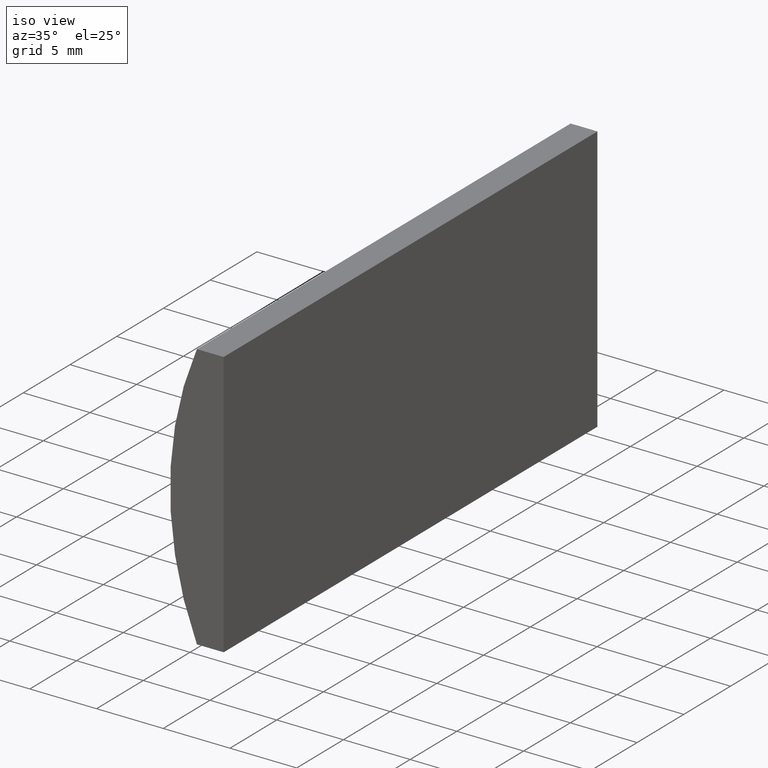
[diagram: clean part render]
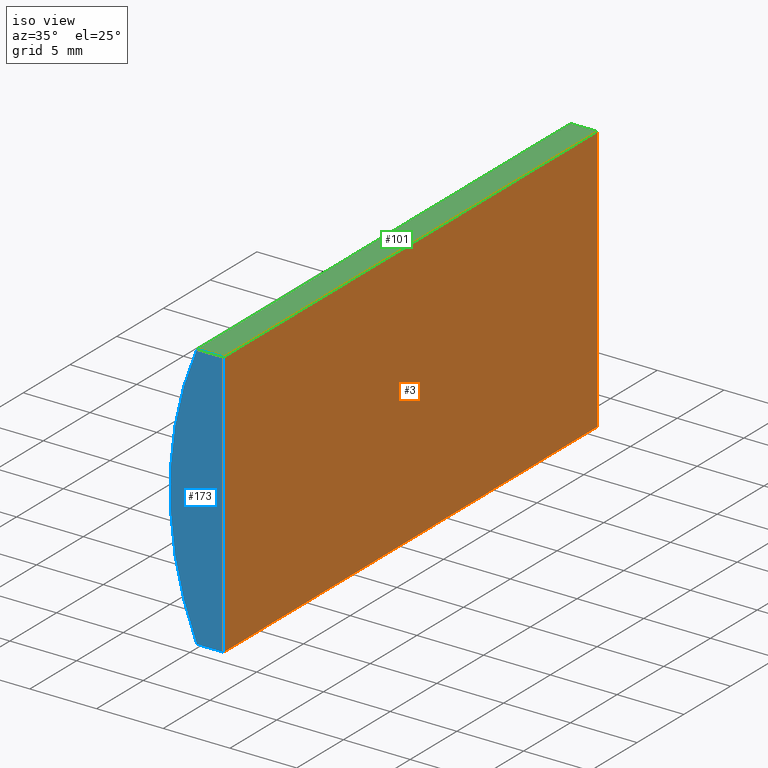
[diagram: same view with three faces highlighted in distinct colors, each labeled with its STEP entity id]
A machine part, iso view with three faces highlighted in distinct colors.
Their STEP definitions:

[orange] entity #3 — the highlighted planar face has unit normal (-1, 0, 0).
#2 = DIRECTION ( 'NONE',  ( -3.469446951953614200E-016, -0.0000000000000000000, -1.000000000000000000 ) ) ;
#3 = ADVANCED_FACE ( 'NONE', ( #80 ), #70, .F. ) ;
#4 = ORIENTED_EDGE ( 'NONE', *, *, #196, .T. ) ;
#5 = LINE ( 'NONE', #18, #135 ) ;
#11 = CARTESIAN_POINT ( 'NONE',  ( -17.47479566514874000, 40.00000000000000000, -10.00000000000000000 ) ) ;
#18 = CARTESIAN_POINT ( 'NONE',  ( -17.47479566514874000, 40.00000000000000000, -10.00000000000000000 ) ) ;
#20 = VERTEX_POINT ( 'NONE', #11 ) ;
#31 = EDGE_CURVE ( 'NONE', #85, #158, #126, .T. ) ;
#35 = EDGE_LOOP ( 'NONE', ( #50, #119, #121, #4 ) ) ;
#50 = ORIENTED_EDGE ( 'NONE', *, *, #31, .T. ) ;
#54 = CARTESIAN_POINT ( 'NONE',  ( -17.47479566514874000, 40.00000000000000000, -10.00000000000000000 ) ) ;
#64 = CARTESIAN_POINT ( 'NONE',  ( -17.47479566514874000, 0.0000000000000000000, -10.00000000000000000 ) ) ;
#67 = LINE ( 'NONE', #54, #165 ) ;
#70 = PLANE ( 'NONE',  #162 ) ;
#80 = FACE_OUTER_BOUND ( 'NONE', #35, .T. ) ;
#85 = VERTEX_POINT ( 'NONE', #143 ) ;
#97 = CARTESIAN_POINT ( 'NONE',  ( -17.47479566514874000, 40.00000000000000000, -10.00000000000000000 ) ) ;
#98 = VECTOR ( 'NONE', #114, 1000.000000000000000 ) ;
#102 = VERTEX_POINT ( 'NONE', #179 ) ;
#105 = EDGE_CURVE ( 'NONE', #102, #20, #67, .T. ) ;
#114 = DIRECTION ( 'NONE',  ( -0.0000000000000000000, -1.000000000000000000, -0.0000000000000000000 ) ) ;
#119 = ORIENTED_EDGE ( 'NONE', *, *, #188, .F. ) ;
#121 = ORIENTED_EDGE ( 'NONE', *, *, #105, .F. ) ;
#126 = LINE ( 'NONE', #200, #148 ) ;
#135 = VECTOR ( 'NONE', #202, 1000.000000000000000 ) ;
#140 = LINE ( 'NONE', #171, #98 ) ;
#143 = CARTESIAN_POINT ( 'NONE',  ( -17.47479566514873300, 0.0000000000000000000, 10.00000000000000000 ) ) ;
#148 = VECTOR ( 'NONE', #2, 1000.000000000000000 ) ;
#151 = DIRECTION ( 'NONE',  ( -1.000000000000000000, 0.0000000000000000000, 3.469446951953614200E-016 ) ) ;
#156 = DIRECTION ( 'NONE',  ( -3.469446951953614200E-016, -0.0000000000000000000, -1.000000000000000000 ) ) ;
#158 = VERTEX_POINT ( 'NONE', #64 ) ;
#162 = AXIS2_PLACEMENT_3D ( 'NONE', #97, #151, #164 ) ;
#164 = DIRECTION ( 'NONE',  ( 3.469446951953614200E-016, 0.0000000000000000000, 1.000000000000000000 ) ) ;
#165 = VECTOR ( 'NONE', #156, 1000.000000000000000 ) ;
#171 = CARTESIAN_POINT ( 'NONE',  ( -17.47479566514873300, 40.00000000000000000, 10.00000000000000000 ) ) ;
#179 = CARTESIAN_POINT ( 'NONE',  ( -17.47479566514873300, 40.00000000000000000, 10.00000000000000000 ) ) ;
#188 = EDGE_CURVE ( 'NONE', #20, #158, #5, .T. ) ;
#196 = EDGE_CURVE ( 'NONE', #102, #85, #140, .T. ) ;
#200 = CARTESIAN_POINT ( 'NONE',  ( -17.47479566514874000, 0.0000000000000000000, -10.00000000000000000 ) ) ;
#202 = DIRECTION ( 'NONE',  ( -0.0000000000000000000, -1.000000000000000000, -0.0000000000000000000 ) ) ;

[blue] entity #173 — the highlighted planar face has unit normal (0, 1, 0).
#1 = ORIENTED_EDGE ( 'NONE', *, *, #31, .F. ) ;
#2 = DIRECTION ( 'NONE',  ( -3.469446951953614200E-016, -0.0000000000000000000, -1.000000000000000000 ) ) ;
#13 = PLANE ( 'NONE',  #117 ) ;
#23 = DIRECTION ( 'NONE',  ( -1.000000000000000000, -0.0000000000000000000, -0.0000000000000000000 ) ) ;
#28 = VERTEX_POINT ( 'NONE', #111 ) ;
#31 = EDGE_CURVE ( 'NONE', #85, #158, #126, .T. ) ;
#33 = CARTESIAN_POINT ( 'NONE',  ( 4.355204334851265500, 0.0000000000000000000, 4.286263797015675000E-017 ) ) ;
#39 = DIRECTION ( 'NONE',  ( 0.0000000000000000000, -0.0000000000000000000, 1.000000000000000000 ) ) ;
#41 = VERTEX_POINT ( 'NONE', #109 ) ;
#43 = FACE_OUTER_BOUND ( 'NONE', #69, .T. ) ;
#57 = VECTOR ( 'NONE', #65, 1000.000000000000000 ) ;
#62 = CARTESIAN_POINT ( 'NONE',  ( -19.48221373003152100, 0.0000000000000000000, 10.00000000000000000 ) ) ;
#64 = CARTESIAN_POINT ( 'NONE',  ( -17.47479566514874000, 0.0000000000000000000, -10.00000000000000000 ) ) ;
#65 = DIRECTION ( 'NONE',  ( 1.000000000000000000, 0.0000000000000000000, 0.0000000000000000000 ) ) ;
#69 = EDGE_LOOP ( 'NONE', ( #86, #94, #1, #177 ) ) ;
#78 = DIRECTION ( 'NONE',  ( 0.0000000000000000000, 1.000000000000000000, 0.0000000000000000000 ) ) ;
#81 = EDGE_CURVE ( 'NONE', #158, #41, #106, .T. ) ;
#85 = VERTEX_POINT ( 'NONE', #143 ) ;
#86 = ORIENTED_EDGE ( 'NONE', *, *, #157, .F. ) ;
#93 = CARTESIAN_POINT ( 'NONE',  ( -19.48221373003152100, 0.0000000000000000000, -10.00000000000000000 ) ) ;
#94 = ORIENTED_EDGE ( 'NONE', *, *, #81, .F. ) ;
#103 = DIRECTION ( 'NONE',  ( 0.0000000000000000000, 1.000000000000000000, 0.0000000000000000000 ) ) ;
#106 = LINE ( 'NONE', #93, #138 ) ;
#107 = CARTESIAN_POINT ( 'NONE',  ( 4.355204334851265500, 0.0000000000000000000, 4.286263797015675000E-017 ) ) ;
#109 = CARTESIAN_POINT ( 'NONE',  ( -19.48221373003152100, 0.0000000000000000000, -10.00000000000000000 ) ) ;
#111 = CARTESIAN_POINT ( 'NONE',  ( -19.48221373003152100, 0.0000000000000000000, 10.00000000000000000 ) ) ;
#117 = AXIS2_PLACEMENT_3D ( 'NONE', #33, #78, #39 ) ;
#118 = LINE ( 'NONE', #62, #57 ) ;
#126 = LINE ( 'NONE', #200, #148 ) ;
#131 = DIRECTION ( 'NONE',  ( 0.0000000000000000000, 0.0000000000000000000, 1.000000000000000000 ) ) ;
#133 = CIRCLE ( 'NONE', #182, 25.85000000000000500 ) ;
#138 = VECTOR ( 'NONE', #23, 1000.000000000000000 ) ;
#143 = CARTESIAN_POINT ( 'NONE',  ( -17.47479566514873300, 0.0000000000000000000, 10.00000000000000000 ) ) ;
#148 = VECTOR ( 'NONE', #2, 1000.000000000000000 ) ;
#157 = EDGE_CURVE ( 'NONE', #41, #28, #133, .T. ) ;
#158 = VERTEX_POINT ( 'NONE', #64 ) ;
#173 = ADVANCED_FACE ( 'NONE', ( #43 ), #13, .F. ) ;
#177 = ORIENTED_EDGE ( 'NONE', *, *, #191, .F. ) ;
#182 = AXIS2_PLACEMENT_3D ( 'NONE', #107, #103, #131 ) ;
#191 = EDGE_CURVE ( 'NONE', #28, #85, #118, .T. ) ;
#200 = CARTESIAN_POINT ( 'NONE',  ( -17.47479566514874000, 0.0000000000000000000, -10.00000000000000000 ) ) ;

[green] entity #101 — the highlighted planar face has unit normal (0, 0, -1).
#8 = DIRECTION ( 'NONE',  ( -0.0000000000000000000, -1.000000000000000000, -0.0000000000000000000 ) ) ;
#12 = LINE ( 'NONE', #195, #198 ) ;
#21 = DIRECTION ( 'NONE',  ( -1.000000000000000000, 0.0000000000000000000, -0.0000000000000000000 ) ) ;
#26 = EDGE_LOOP ( 'NONE', ( #172, #160, #112, #186 ) ) ;
#28 = VERTEX_POINT ( 'NONE', #111 ) ;
#30 = CARTESIAN_POINT ( 'NONE',  ( -19.48221373003152100, 40.00000000000000000, 10.00000000000000000 ) ) ;
#46 = EDGE_CURVE ( 'NONE', #197, #102, #12, .T. ) ;
#57 = VECTOR ( 'NONE', #65, 1000.000000000000000 ) ;
#62 = CARTESIAN_POINT ( 'NONE',  ( -19.48221373003152100, 0.0000000000000000000, 10.00000000000000000 ) ) ;
#65 = DIRECTION ( 'NONE',  ( 1.000000000000000000, 0.0000000000000000000, 0.0000000000000000000 ) ) ;
#66 = FACE_OUTER_BOUND ( 'NONE', #26, .T. ) ;
#76 = VECTOR ( 'NONE', #8, 1000.000000000000000 ) ;
#85 = VERTEX_POINT ( 'NONE', #143 ) ;
#98 = VECTOR ( 'NONE', #114, 1000.000000000000000 ) ;
#101 = ADVANCED_FACE ( 'NONE', ( #66 ), #166, .F. ) ;
#102 = VERTEX_POINT ( 'NONE', #179 ) ;
#111 = CARTESIAN_POINT ( 'NONE',  ( -19.48221373003152100, 0.0000000000000000000, 10.00000000000000000 ) ) ;
#112 = ORIENTED_EDGE ( 'NONE', *, *, #46, .F. ) ;
#114 = DIRECTION ( 'NONE',  ( -0.0000000000000000000, -1.000000000000000000, -0.0000000000000000000 ) ) ;
#118 = LINE ( 'NONE', #62, #57 ) ;
#127 = DIRECTION ( 'NONE',  ( 1.000000000000000000, 0.0000000000000000000, 0.0000000000000000000 ) ) ;
#140 = LINE ( 'NONE', #171, #98 ) ;
#143 = CARTESIAN_POINT ( 'NONE',  ( -17.47479566514873300, 0.0000000000000000000, 10.00000000000000000 ) ) ;
#150 = CARTESIAN_POINT ( 'NONE',  ( -19.48221373003152100, 40.00000000000000000, 10.00000000000000000 ) ) ;
#160 = ORIENTED_EDGE ( 'NONE', *, *, #196, .F. ) ;
#166 = PLANE ( 'NONE',  #201 ) ;
#167 = EDGE_CURVE ( 'NONE', #197, #28, #190, .T. ) ;
#171 = CARTESIAN_POINT ( 'NONE',  ( -17.47479566514873300, 40.00000000000000000, 10.00000000000000000 ) ) ;
#172 = ORIENTED_EDGE ( 'NONE', *, *, #191, .T. ) ;
#176 = DIRECTION ( 'NONE',  ( 0.0000000000000000000, 0.0000000000000000000, -1.000000000000000000 ) ) ;
#179 = CARTESIAN_POINT ( 'NONE',  ( -17.47479566514873300, 40.00000000000000000, 10.00000000000000000 ) ) ;
#186 = ORIENTED_EDGE ( 'NONE', *, *, #167, .T. ) ;
#190 = LINE ( 'NONE', #150, #76 ) ;
#191 = EDGE_CURVE ( 'NONE', #28, #85, #118, .T. ) ;
#194 = CARTESIAN_POINT ( 'NONE',  ( -19.48221373003152100, 40.00000000000000000, 10.00000000000000000 ) ) ;
#195 = CARTESIAN_POINT ( 'NONE',  ( -19.48221373003152100, 40.00000000000000000, 10.00000000000000000 ) ) ;
#196 = EDGE_CURVE ( 'NONE', #102, #85, #140, .T. ) ;
#197 = VERTEX_POINT ( 'NONE', #30 ) ;
#198 = VECTOR ( 'NONE', #127, 1000.000000000000000 ) ;
#201 = AXIS2_PLACEMENT_3D ( 'NONE', #194, #176, #21 ) ;